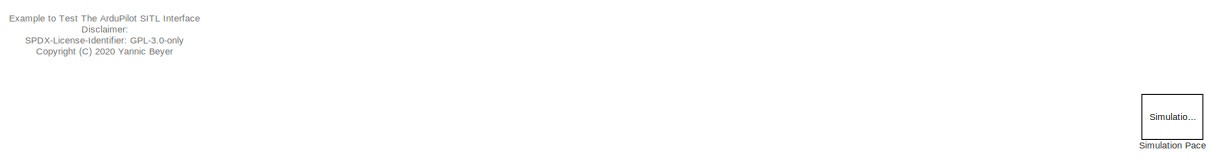
[diagram: root canvas - part 1/3, top center region]
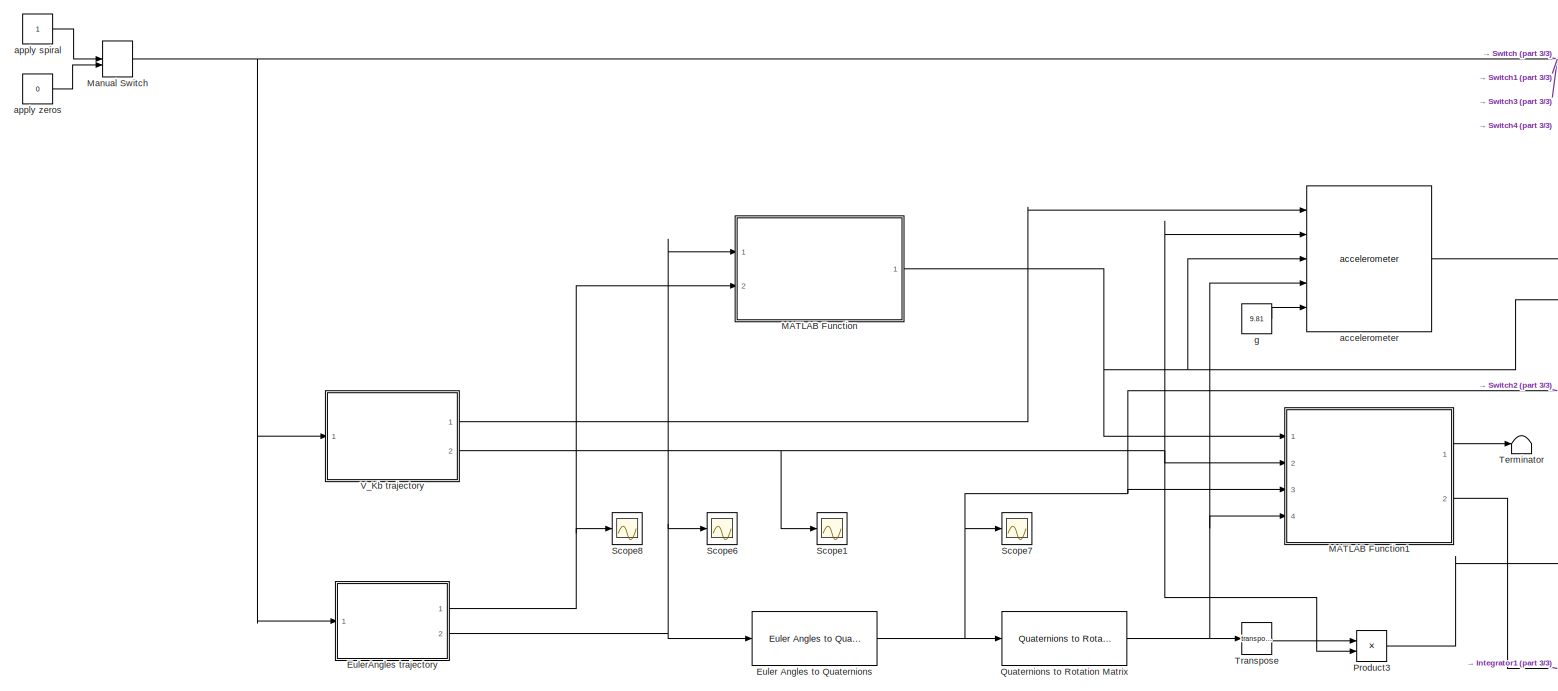
[diagram: root canvas - part 2/3, middle left region]
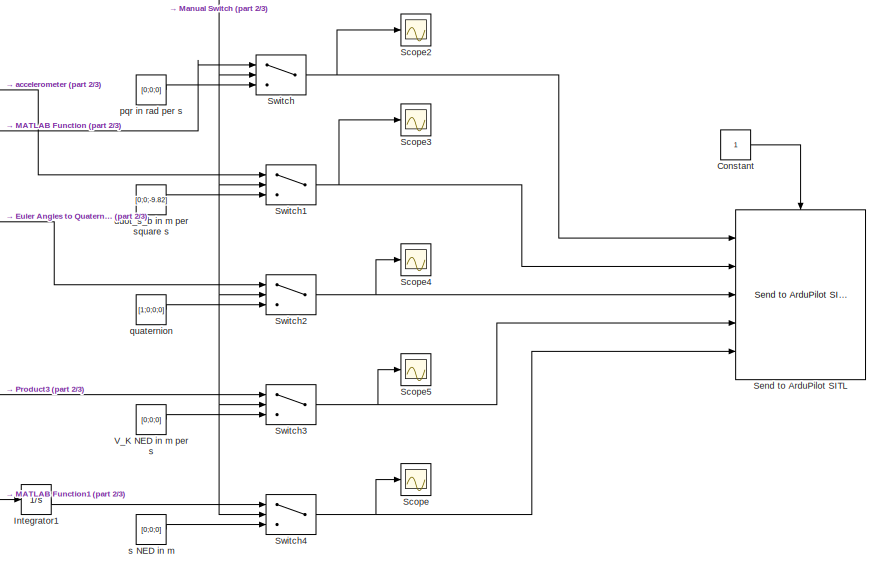
[diagram: root canvas - part 3/3, bottom right region]
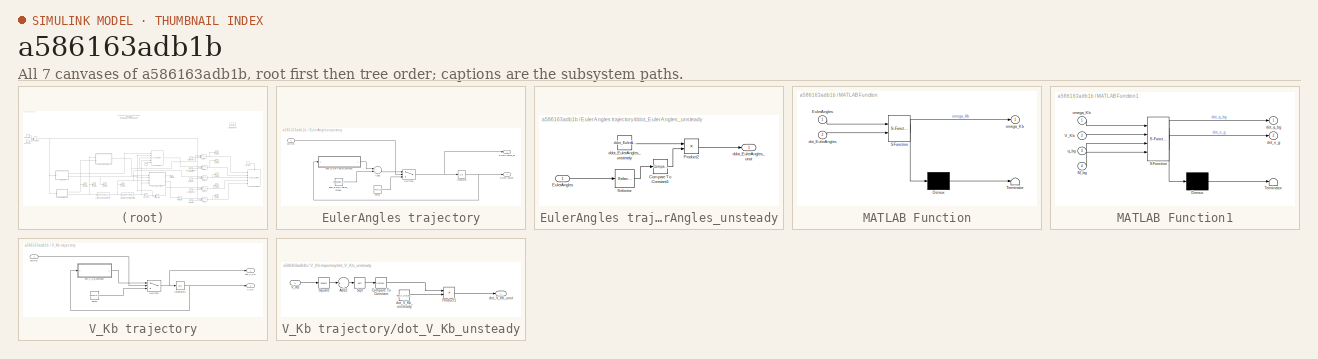
[diagram: thumbnail index - all 7 canvases of the model, root first then tree order]
MODEL slx_a586163adb1b
KIND model
CONFIG AbsTol = auto
CONFIG EnableMultiTasking = off
CONFIG FixedStep = 1/4000
CONFIG MaxStep = auto
CONFIG MinStep = auto
CONFIG RelTol = 1e-3
CONFIG SampleTimeConstraint = Unconstrained
CONFIG Solver = FixedStepAuto
CONFIG SolverName = FixedStepAuto
CONFIG StartTime = 0.0
CONFIG StopTime = inf
BLOCK [Constant] Constant
BLOCK [Reference] Euler Angles to Quaternions  REF=axes_transformation_lib/Euler Angles to Quaternions  (lib defined in slx_69e2413c78c0)
  Ports = [1, 1]
  SourceBlock = axes_transformation_lib/Euler Angles to Quaternions
  SourceProductName = LADAC
  SourceType = SubSystem
BLOCK [SubSystem] EulerAngles trajectory
  Ports = [1, 2]
  RequestExecContextInheritance = off
BLOCK [Sum] EulerAngles trajectory/Add3
  InputSameDT = off
  OutDataTypeStr = Inherit: Inherit via internal rule
  Ports = [2, 1]
  SaturateOnIntegerOverflow = off
BLOCK [Outport] EulerAngles trajectory/EulerAngles
  IconDisplay = Port number
  Port = 2
BLOCK [Outport] EulerAngles trajectory/EulerAngles_dt
  IconDisplay = Port number
BLOCK [Integrator] EulerAngles trajectory/Integrator
  InitialCondition = [0;0;0]
  Ports = [1, 1]
BLOCK [Switch] EulerAngles trajectory/Switch6
  Criteria = u2 > Threshold
  InputSameDT = off
  SaturateOnIntegerOverflow = off
BLOCK [Constant] EulerAngles trajectory/ddot_EulerAngles_steady
  Value = ddot_EulerAngles_steady
BLOCK [SubSystem] EulerAngles trajectory/ddot_EulerAngles_unsteady
  Ports = [1, 1]
  RequestExecContextInheritance = off
BLOCK [Reference] EulerAngles trajectory/ddot_EulerAngles_unsteady/Compare To Constant1  REF=simulink/Logic and Bit
Operations/Compare
To Constant
  Ports = [1, 1]
  SourceBlock = simulink/Logic and Bit\nOperations/Compare\nTo Constant
  SourceProductBaseCode = SL
  SourceProductName = Simulink
  SourceType = Compare To Constant
BLOCK [Inport] EulerAngles trajectory/ddot_EulerAngles_unsteady/EulerAngles
  IconDisplay = Port number
BLOCK [Product] EulerAngles trajectory/ddot_EulerAngles_unsteady/Product2
  InputSameDT = off
  OutDataTypeStr = Inherit: Inherit via internal rule
  Ports = [2, 1]
  RndMeth = Floor
  SaturateOnIntegerOverflow = off
BLOCK [Selector] EulerAngles trajectory/ddot_EulerAngles_unsteady/Selector
  IndexOptions = Index vector (dialog)
  Indices = 1
  InputPortWidth = 3
  OutputSizes = 1
  Ports = [1, 1]
BLOCK [Outport] EulerAngles trajectory/ddot_EulerAngles_unsteady/ddot_EulerAngles_unst
  IconDisplay = Port number
BLOCK [Constant] EulerAngles trajectory/ddot_EulerAngles_unsteady/ddot_EulerAngles_unsteady
  Value = ddot_EulerAngles_unsteady
BLOCK [Inport] EulerAngles trajectory/switch
  IconDisplay = Port number
BLOCK [Constant] EulerAngles trajectory/zeros
  Value = zeros(3,1)
BLOCK [Integrator] Integrator1
  Ports = [1, 1]
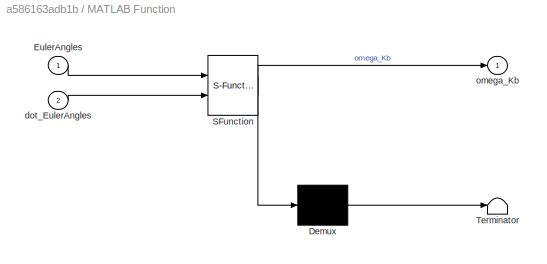
BLOCK [SubSystem] MATLAB Function
  ErrorFcn = Stateflow.Translate.translate
  PermitHierarchicalResolution = ExplicitOnly
  Ports = [2, 1]
  RequestExecContextInheritance = off
  SFBlockType = MATLAB Function
  TreatAsAtomicUnit = on
BLOCK [Demux] MATLAB Function/ Demux 
  Outputs = 1
  Ports = [1, 1]
BLOCK [S-Function] MATLAB Function/ SFunction 
  EnableBusSupport = on
  FunctionName = sf_sfun
  PortCounts = [2 2]
  Ports = [2, 2]
  SFcnIsStateOwnerBlock = off
  SFunctionDeploymentMode = off
  Tag = Stateflow S-Function ardupilot_sitl_example 2
BLOCK [Terminator] MATLAB Function/ Terminator 
BLOCK [Inport] MATLAB Function/EulerAngles
  IconDisplay = Port number
BLOCK [Inport] MATLAB Function/dot_EulerAngles
  IconDisplay = Port number
  Port = 2
BLOCK [Outport] MATLAB Function/omega_Kb
  IconDisplay = Port number
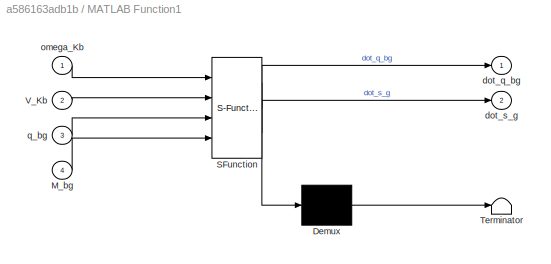
BLOCK [SubSystem] MATLAB Function1
  ErrorFcn = Stateflow.Translate.translate
  PermitHierarchicalResolution = ExplicitOnly
  Ports = [4, 2]
  RequestExecContextInheritance = off
  SFBlockType = MATLAB Function
  TreatAsAtomicUnit = on
BLOCK [Demux] MATLAB Function1/ Demux 
  Outputs = 1
  Ports = [1, 1]
BLOCK [S-Function] MATLAB Function1/ SFunction 
  EnableBusSupport = on
  FunctionName = sf_sfun
  PortCounts = [4 3]
  Ports = [4, 3]
  SFcnIsStateOwnerBlock = off
  SFunctionDeploymentMode = off
  Tag = Stateflow S-Function ardupilot_sitl_example 1
BLOCK [Terminator] MATLAB Function1/ Terminator 
BLOCK [Inport] MATLAB Function1/M_bg
  IconDisplay = Port number
  Port = 4
BLOCK [Inport] MATLAB Function1/V_Kb
  IconDisplay = Port number
  Port = 2
BLOCK [Outport] MATLAB Function1/dot_q_bg
  IconDisplay = Port number
BLOCK [Outport] MATLAB Function1/dot_s_g
  IconDisplay = Port number
  Port = 2
BLOCK [Inport] MATLAB Function1/omega_Kb
  IconDisplay = Port number
BLOCK [Inport] MATLAB Function1/q_bg
  IconDisplay = Port number
  Port = 3
BLOCK [ManualSwitch] Manual Switch
  CurrentSetting = 0
BLOCK [Product] Product3
  InputSameDT = off
  Multiplication = Matrix(*)
  OutDataTypeStr = Inherit: Inherit via internal rule
  Ports = [2, 1]
  RndMeth = Floor
  SaturateOnIntegerOverflow = off
BLOCK [Reference] Quaternions to Rotation Matrix  REF=axes_transformation_lib/Quaternions to Rotation Matrix  (lib defined in slx_69e2413c78c0)
  Ports = [1, 1]
  SourceBlock = axes_transformation_lib/Quaternions to Rotation Matrix
  SourceProductName = LADAC
  SourceType = SubSystem
BLOCK [Scope] Scope
  Floating = off
  NumInputPorts = 1
  Ports = [1]
  ScopeSpecificationString = Simulink.scopes.TimeScopeBlockCfg('CurrentConfiguration', extmgr.ConfigurationSet(extmgr.Configuration('Core','General UI',true),extmgr.Configuration('Core','Source UI',true),extmgr.Configuration('Sources','WiredSimulink',true,'DataLoggingVariableName','ScopePos_NED','DataLogging',true,'DataLoggingSaveFormat','Array'),extmgr.Configuration('Visuals','Time Domain',true,'SerializedDisplays',{struct('...<+1510ch>
BLOCK [Scope] Scope1
  Floating = off
  NumInputPorts = 1
  Ports = [1]
  ScopeSpecificationString = Simulink.scopes.TimeScopeBlockCfg('CurrentConfiguration', extmgr.ConfigurationSet(extmgr.Configuration('Core','General UI',true),extmgr.Configuration('Core','Source UI',true),extmgr.Configuration('Sources','WiredSimulink',true),extmgr.Configuration('Visuals','Time Domain',true,'SerializedDisplays',{struct('MinYLimReal','-362.35575','MaxYLimReal','40.26175','YLabelReal','','MinYLimMag',' 0.00000','...<+1492ch>
BLOCK [Scope] Scope2
  Floating = off
  NumInputPorts = 1
  Ports = [1]
  ScopeSpecificationString = Simulink.scopes.TimeScopeBlockCfg('CurrentConfiguration', extmgr.ConfigurationSet(extmgr.Configuration('Core','General UI',true),extmgr.Configuration('Core','Source UI',true),extmgr.Configuration('Sources','WiredSimulink',true,'DataLoggingVariableName','ScopeData1'),extmgr.Configuration('Visuals','Time Domain',true,'SerializedDisplays',{struct('MinYLimReal','-0.03436','MaxYLimReal','0.11054','YLab...<+1487ch>
BLOCK [Scope] Scope3
  Floating = off
  NumInputPorts = 1
  Ports = [1]
  ScopeSpecificationString = Simulink.scopes.TimeScopeBlockCfg('CurrentConfiguration', extmgr.ConfigurationSet(extmgr.Configuration('Core','General UI',true),extmgr.Configuration('Core','Source UI',true),extmgr.Configuration('Sources','WiredSimulink',true,'DataLoggingVariableName','ScopeData2'),extmgr.Configuration('Visuals','Time Domain',true,'SerializedDisplays',{struct('MinYLimReal','-11.0475','MaxYLimReal','1.2275','YLabe...<+1468ch>
BLOCK [Scope] Scope4
  Floating = off
  NumInputPorts = 1
  Ports = [1]
  ScopeSpecificationString = Simulink.scopes.TimeScopeBlockCfg('CurrentConfiguration', extmgr.ConfigurationSet(extmgr.Configuration('Core','General UI',true),extmgr.Configuration('Core','Source UI',true),extmgr.Configuration('Sources','WiredSimulink',true,'DataLoggingVariableName','ScopeData3'),extmgr.Configuration('Visuals','Time Domain',true,'SerializedDisplays',{struct('MinYLimReal','-0.64086','MaxYLimReal','1.08261','YLab...<+1471ch>
BLOCK [Scope] Scope5
  Floating = off
  NumInputPorts = 1
  Ports = [1]
  ScopeSpecificationString = Simulink.scopes.TimeScopeBlockCfg('CurrentConfiguration', extmgr.ConfigurationSet(extmgr.Configuration('Core','General UI',true),extmgr.Configuration('Core','Source UI',true),extmgr.Configuration('Sources','WiredSimulink',true,'DataLoggingVariableName','ScopeData4'),extmgr.Configuration('Visuals','Time Domain',true,'SerializedDisplays',{struct('MinYLimReal','-1.00000','MaxYLimReal','1.00000','YLab...<+1470ch>
BLOCK [Scope] Scope6
  Floating = off
  NumInputPorts = 1
  Ports = [1]
  ScopeSpecificationString = Simulink.scopes.TimeScopeBlockCfg('CurrentConfiguration', extmgr.ConfigurationSet(extmgr.Configuration('Core','General UI',true),extmgr.Configuration('Core','Source UI',true),extmgr.Configuration('Sources','WiredSimulink',true,'DataLoggingVariableName','ScopeData1'),extmgr.Configuration('Visuals','Time Domain',true,'SerializedDisplays',{struct('MinYLimReal','-4.0305','MaxYLimReal','36.2745','YLabe...<+1527ch>
BLOCK [Scope] Scope7
  Floating = off
  NumInputPorts = 1
  Ports = [1]
  ScopeSpecificationString = Simulink.scopes.TimeScopeBlockCfg('CurrentConfiguration', extmgr.ConfigurationSet(extmgr.Configuration('Core','General UI',true),extmgr.Configuration('Core','Source UI',true),extmgr.Configuration('Sources','WiredSimulink',true,'DataLoggingVariableName','ScopeData1'),extmgr.Configuration('Visuals','Time Domain',true,'SerializedDisplays',{struct('MinYLimReal','-0.64086','MaxYLimReal','1.08261','YLab...<+1539ch>
BLOCK [Scope] Scope8
  Floating = off
  NumInputPorts = 1
  Ports = [1]
  ScopeSpecificationString = Simulink.scopes.TimeScopeBlockCfg('CurrentConfiguration', extmgr.ConfigurationSet(extmgr.Configuration('Core','General UI',true),extmgr.Configuration('Core','Source UI',true),extmgr.Configuration('Sources','WiredSimulink',true,'DataLoggingVariableName','ScopeData2'),extmgr.Configuration('Visuals','Time Domain',true,'SerializedDisplays',{struct('MinYLimReal','-1.00000','MaxYLimReal','1.00000','YLab...<+1487ch>
BLOCK [Reference] Send to ArduPilot SITL  REF=ardupilot_sitl_lib/Send to ArduPilot SITL  (lib defined in slx_448b01335727)
  Ports = [5, 0, 1]
  SourceBlock = ardupilot_sitl_lib/Send to ArduPilot SITL
  SourceProductName = LADAC
BLOCK [Reference] Simulation Pace  REF=aerolibanimutils/Simulation Pace
  AttributesFormatString = %<SleepMode>\n%<SimulationPace> sec/sec
  Ports = []
  SourceBlock = aerolibanimutils/Simulation Pace
  SourceProductBaseCode = AE
  SourceProductName = Aerospace Blockset
  SourceType = Simulation Pace
BLOCK [Switch] Switch
  InputSameDT = off
  SaturateOnIntegerOverflow = off
BLOCK [Switch] Switch1
  Criteria = u2 > Threshold
  InputSameDT = off
  SaturateOnIntegerOverflow = off
BLOCK [Switch] Switch2
  Criteria = u2 > Threshold
  InputSameDT = off
  SaturateOnIntegerOverflow = off
BLOCK [Switch] Switch3
  Criteria = u2 > Threshold
  InputSameDT = off
  SaturateOnIntegerOverflow = off
BLOCK [Switch] Switch4
  Criteria = u2 > Threshold
  InputSameDT = off
  SaturateOnIntegerOverflow = off
BLOCK [Terminator] Terminator
BLOCK [Math] Transpose
  Operator = transpose
  Ports = [1, 1]
BLOCK [Constant] V_K NED in m per s
  Value = [0;0;0]
BLOCK [SubSystem] V_Kb trajectory
  Ports = [1, 2]
  RequestExecContextInheritance = off
BLOCK [Integrator] V_Kb trajectory/Integrator2
  InitialCondition = [0;0;0]
  Ports = [1, 1]
BLOCK [Switch] V_Kb trajectory/Switch5
  Criteria = u2 > Threshold
  InputSameDT = off
  SaturateOnIntegerOverflow = off
BLOCK [Outport] V_Kb trajectory/V_Kb
  IconDisplay = Port number
  Port = 2
BLOCK [Outport] V_Kb trajectory/dot_V_Kb
  IconDisplay = Port number
BLOCK [SubSystem] V_Kb trajectory/dot_V_Kb_unsteady
  Ports = [1, 1]
  RequestExecContextInheritance = off
BLOCK [Sum] V_Kb trajectory/dot_V_Kb_unsteady/Add2
  IconShape = round
  InputSameDT = off
  Inputs = +
  OutDataTypeStr = Inherit: Inherit via internal rule
  Ports = [1, 1]
  SaturateOnIntegerOverflow = off
BLOCK [Reference] V_Kb trajectory/dot_V_Kb_unsteady/Compare To Constant  REF=simulink/Logic and Bit
Operations/Compare
To Constant
  Ports = [1, 1]
  SourceBlock = simulink/Logic and Bit\nOperations/Compare\nTo Constant
  SourceProductBaseCode = SL
  SourceProductName = Simulink
  SourceType = Compare To Constant
BLOCK [Product] V_Kb trajectory/dot_V_Kb_unsteady/Product1
  InputSameDT = off
  OutDataTypeStr = Inherit: Inherit via internal rule
  Ports = [2, 1]
  RndMeth = Floor
  SaturateOnIntegerOverflow = off
BLOCK [Sqrt] V_Kb trajectory/dot_V_Kb_unsteady/Sqrt
BLOCK [Math] V_Kb trajectory/dot_V_Kb_unsteady/Square
  Operator = square
  Ports = [1, 1]
BLOCK [Inport] V_Kb trajectory/dot_V_Kb_unsteady/V_Kb
  IconDisplay = Port number
BLOCK [Outport] V_Kb trajectory/dot_V_Kb_unsteady/dot_V_Kb_unst
  IconDisplay = Port number
BLOCK [Constant] V_Kb trajectory/dot_V_Kb_unsteady/dot_V_Kb_unsteady
  Value = dot_V_Kb_unsteady
BLOCK [Inport] V_Kb trajectory/switch
  IconDisplay = Port number
BLOCK [Constant] V_Kb trajectory/zeros
  Value = zeros(3,1)
BLOCK [Reference] accelerometer  REF=sensors_lib/accelerometer  (lib defined in mdl_052e9be48c24, mdl_88e42053cf8c, +1 more)
  Ports = [5, 1]
  SourceBlock = sensors_lib/accelerometer
  SourceProductName = LADAC
  SourceType = SubSystem
BLOCK [Constant] apply spiral
BLOCK [Constant] apply zeros
  Value = 0
BLOCK [Constant] ddot_s_b in m per square s
  Value = [0;0;-9.82]
BLOCK [Constant] g
  Value = 9.81
BLOCK [Constant] pqr in rad per s
  Value = [0;0;0]
BLOCK [Constant] quaternion
  Value = [1;0;0;0]
BLOCK [Constant] s NED in m
  Value = [0;0;0]
ANNOTATION (root): Example to Test The ArduPilot SITL Interface Disclaimer: SPDX-License-Identifier: GPL-3.0-only <copyright redacted>
LINE Constant:1 -> Send to ArduPilot SITL:enable
NET Euler Angles to Quaternions:1 -> MATLAB Function1:3, Quaternions to Rotation Matrix:1, Scope7:1, Switch2:1
LINE EulerAngles trajectory/Add3:1 -> EulerAngles trajectory/Switch6:1
NET EulerAngles trajectory/Integrator:1 -> EulerAngles trajectory/EulerAngles:1, EulerAngles trajectory/ddot_EulerAngles_unsteady:1
NET EulerAngles trajectory/Switch6:1 -> EulerAngles trajectory/EulerAngles_dt:1, EulerAngles trajectory/Integrator:1
LINE EulerAngles trajectory/ddot_EulerAngles_steady:1 -> EulerAngles trajectory/Add3:2
LINE EulerAngles trajectory/ddot_EulerAngles_unsteady/Compare To Constant1:1 -> EulerAngles trajectory/ddot_EulerAngles_unsteady/Product2:2
LINE EulerAngles trajectory/ddot_EulerAngles_unsteady/EulerAngles:1 -> EulerAngles trajectory/ddot_EulerAngles_unsteady/Selector:1
LINE EulerAngles trajectory/ddot_EulerAngles_unsteady/Product2:1 -> EulerAngles trajectory/ddot_EulerAngles_unsteady/ddot_EulerAngles_unst:1
LINE EulerAngles trajectory/ddot_EulerAngles_unsteady/Selector:1 -> EulerAngles trajectory/ddot_EulerAngles_unsteady/Compare To Constant1:1
LINE EulerAngles trajectory/ddot_EulerAngles_unsteady/ddot_EulerAngles_unsteady:1 -> EulerAngles trajectory/ddot_EulerAngles_unsteady/Product2:1
LINE EulerAngles trajectory/ddot_EulerAngles_unsteady:1 -> EulerAngles trajectory/Add3:1
LINE EulerAngles trajectory/switch:1 -> EulerAngles trajectory/Switch6:2
LINE EulerAngles trajectory/zeros:1 -> EulerAngles trajectory/Switch6:3
NET EulerAngles trajectory:1 -> MATLAB Function:2, Scope8:1
NET EulerAngles trajectory:2 -> Euler Angles to Quaternions:1, MATLAB Function:1, Scope6:1
LINE Integrator1:1 -> Switch4:1
LINE MATLAB Function1:1 -> Terminator:1
LINE MATLAB Function1:2 -> Integrator1:1
NET MATLAB Function:1 -> MATLAB Function1:1, Switch:1, accelerometer:3
NET Manual Switch:1 -> EulerAngles trajectory:1, Switch1:2, Switch2:2, Switch3:2, Switch4:2, Switch:2, V_Kb trajectory:1
LINE Product3:1 -> Switch3:1
NET Quaternions to Rotation Matrix:1 -> MATLAB Function1:4, Transpose:1, accelerometer:4
NET Switch1:1 -> Scope3:1, Send to ArduPilot SITL:2
NET Switch2:1 -> Scope4:1, Send to ArduPilot SITL:3
NET Switch3:1 -> Scope5:1, Send to ArduPilot SITL:4
NET Switch4:1 -> Scope:1, Send to ArduPilot SITL:5
NET Switch:1 -> Scope2:1, Send to ArduPilot SITL:1
LINE Transpose:1 -> Product3:1
LINE V_K NED in m per s:1 -> Switch3:3
NET V_Kb trajectory/Integrator2:1 -> V_Kb trajectory/V_Kb:1, V_Kb trajectory/dot_V_Kb_unsteady:1
NET V_Kb trajectory/Switch5:1 -> V_Kb trajectory/Integrator2:1, V_Kb trajectory/dot_V_Kb:1
LINE V_Kb trajectory/dot_V_Kb_unsteady/Add2:1 -> V_Kb trajectory/dot_V_Kb_unsteady/Sqrt:1
LINE V_Kb trajectory/dot_V_Kb_unsteady/Compare To Constant:1 -> V_Kb trajectory/dot_V_Kb_unsteady/Product1:1
LINE V_Kb trajectory/dot_V_Kb_unsteady/Product1:1 -> V_Kb trajectory/dot_V_Kb_unsteady/dot_V_Kb_unst:1
LINE V_Kb trajectory/dot_V_Kb_unsteady/Sqrt:1 -> V_Kb trajectory/dot_V_Kb_unsteady/Compare To Constant:1
LINE V_Kb trajectory/dot_V_Kb_unsteady/Square:1 -> V_Kb trajectory/dot_V_Kb_unsteady/Add2:1
LINE V_Kb trajectory/dot_V_Kb_unsteady/V_Kb:1 -> V_Kb trajectory/dot_V_Kb_unsteady/Square:1
LINE V_Kb trajectory/dot_V_Kb_unsteady/dot_V_Kb_unsteady:1 -> V_Kb trajectory/dot_V_Kb_unsteady/Product1:2
LINE V_Kb trajectory/dot_V_Kb_unsteady:1 -> V_Kb trajectory/Switch5:1
LINE V_Kb trajectory/switch:1 -> V_Kb trajectory/Switch5:2
LINE V_Kb trajectory/zeros:1 -> V_Kb trajectory/Switch5:3
LINE V_Kb trajectory:1 -> accelerometer:1
NET V_Kb trajectory:2 -> MATLAB Function1:2, Product3:2, Scope1:1, accelerometer:2
LINE accelerometer:1 -> Switch1:1
LINE apply spiral:1 -> Manual Switch:1
LINE apply zeros:1 -> Manual Switch:2
LINE ddot_s_b in m per square s:1 -> Switch1:3
LINE g:1 -> accelerometer:5
LINE pqr in rad per s:1 -> Switch:3
LINE quaternion:1 -> Switch2:3
LINE s NED in m:1 -> Switch4:3
note: NET lines group one-source signal fan-out (src -> all destinations, sorted); 1:1 wires keep LINE
CHART MATLAB Function1 states=1 transitions=1
  STATE_LABEL 'eML_blk_kernel()'
  STATE_LABEL 'SCRIPT:\nfunction [ dot_q_bg, dot_s_g ] = ...\n    fcn( omega_Kb, V_Kb, q_bg, M_bg )%#codegen\n[ dot_q_bg, dot_s_g ] = ...\n    rigidBodyKinematicsQuat( omega_Kb, V_Kb, q_bg, M_bg );\nend'
CHART MATLAB Function states=1 transitions=1
  STATE_LABEL 'eML_blk_kernel()'
  STATE_LABEL 'SCRIPT:\nfunction omega_Kb = fcn(EulerAngles,dot_EulerAngles)\n%#codegen\n    Theta = EulerAngles(1);\n    Phi = EulerAngles(2);\n    M = [ 1, 0, -sin(Theta); ...\n        0, cos(Phi), sin(Phi)*cos(Theta); ...\n        0, -sin(Phi), cos(Phi)*cos(Theta) ];\n    omega_Kb = M * dot_EulerAngles;\nend'
